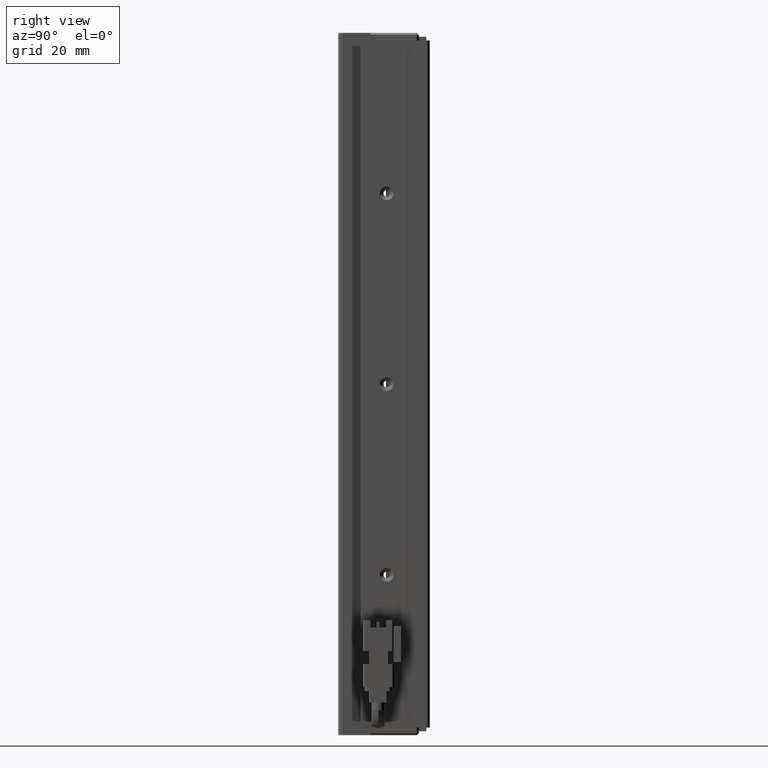
[diagram: clean part render]
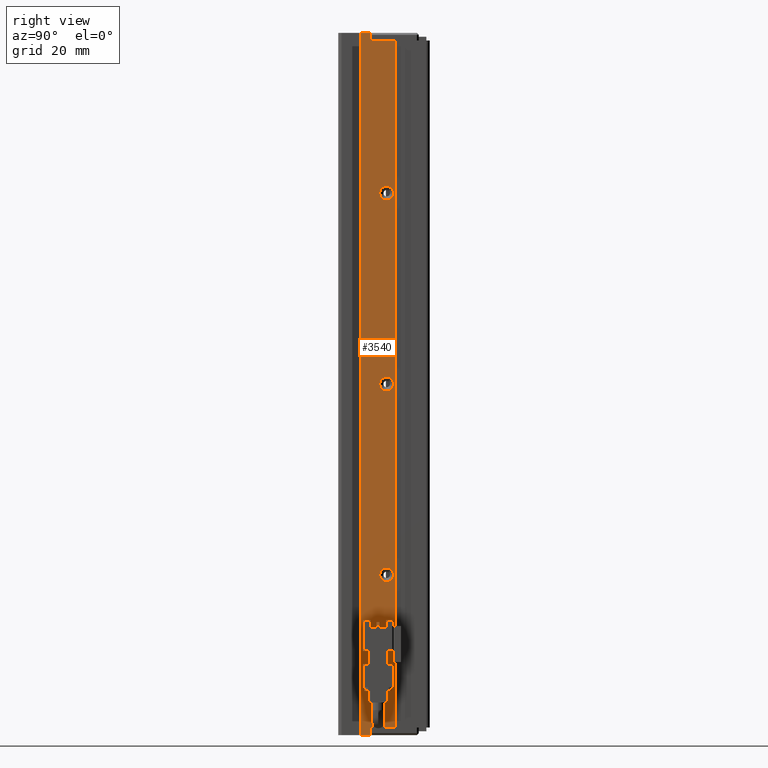
[diagram: same view with one face highlighted and labeled with its STEP entity id]
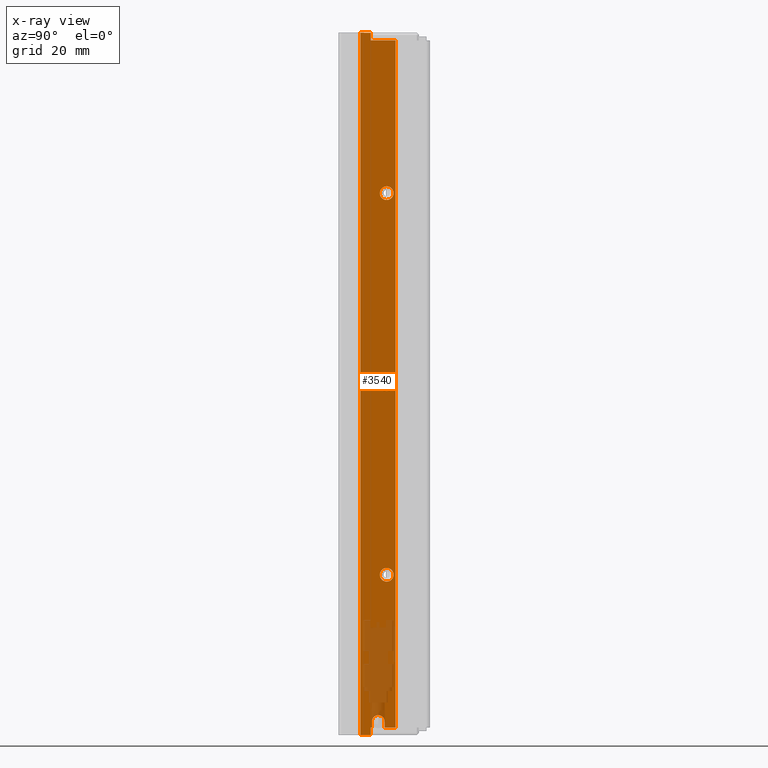
[diagram: x-ray of the same camera — body ghosted, the highlighted face saturated]
A machine part, right view. The second image highlights one B-rep face of the part: STEP entity #3540.
The next image is the same camera in x-ray: the body ghosted, the highlighted face saturated — about 10% of this face is hidden behind the body in this view.
In plain terms, the highlighted planar face has unit normal (-1, 0, 0).
Its self-contained STEP definition (entity closure, byte-faithful):
#128 = ORIENTED_EDGE ( 'NONE', *, *, #40824, .F. ) ;
#134 = PLANE ( 'NONE',  #14383 ) ;
#233 = CIRCLE ( 'NONE', #39451, 1.800000000014262400 ) ;
#405 = VECTOR ( 'NONE', #27981, 1000.000000000000000 ) ;
#547 = LINE ( 'NONE', #37311, #18160 ) ;
#699 = FACE_BOUND ( 'NONE', #46988, .T. ) ;
#729 = CARTESIAN_POINT ( 'NONE',  ( 51.42537974675766300, 23.69073232304837300, -115.0000000000000000 ) ) ;
#883 = ORIENTED_EDGE ( 'NONE', *, *, #30562, .F. ) ;
#1292 = AXIS2_PLACEMENT_3D ( 'NONE', #7423, #37057, #14677 ) ;
#1970 = LINE ( 'NONE', #13192, #14348 ) ;
#2014 = CARTESIAN_POINT ( 'NONE',  ( 51.42537974683541800, 16.79073232304837000, -207.0000000000000300 ) ) ;
#2220 = VERTEX_POINT ( 'NONE', #46627 ) ;
#2466 = VERTEX_POINT ( 'NONE', #19974 ) ;
#2497 = DIRECTION ( 'NONE',  ( 1.000000000000000000, 0.0000000000000000000, 0.0000000000000000000 ) ) ;
#3121 = EDGE_CURVE ( 'NONE', #23845, #40643, #1970, .T. ) ;
#3306 = CARTESIAN_POINT ( 'NONE',  ( 51.42537974683541800, 7.083797468354437600, -205.0000000000000300 ) ) ;
#3395 = AXIS2_PLACEMENT_3D ( 'NONE', #11533, #37202, #4110 ) ;
#3540 = ADVANCED_FACE ( 'NONE', ( #22979, #699, #11888, #37039 ), #134, .F. ) ;
#3723 = CIRCLE ( 'NONE', #3395, 1.649999999999998600 ) ;
#3783 = DIRECTION ( 'NONE',  ( 0.0000000000000000000, 0.0000000000000000000, -1.000000000000000000 ) ) ;
#3825 = ORIENTED_EDGE ( 'NONE', *, *, #34744, .F. ) ;
#4110 = DIRECTION ( 'NONE',  ( 0.0000000000000000000, 1.000000000000000000, 0.0000000000000000000 ) ) ;
#4149 = EDGE_CURVE ( 'NONE', #40376, #27003, #17003, .T. ) ;
#4599 = VECTOR ( 'NONE', #43146, 1000.000000000000000 ) ;
#4779 = CARTESIAN_POINT ( 'NONE',  ( 51.42537974683541800, 25.99073232304837300, -24.99999999999999300 ) ) ;
#5527 = CARTESIAN_POINT ( 'NONE',  ( 51.42537974675766300, 23.69073232304837300, -113.1999999999970900 ) ) ;
#5674 = EDGE_CURVE ( 'NONE', #2220, #44594, #37979, .T. ) ;
#6479 = DIRECTION ( 'NONE',  ( 1.000000000000000000, 0.0000000000000000000, 0.0000000000000000000 ) ) ;
#6808 = CARTESIAN_POINT ( 'NONE',  ( 51.42537974683541800, 19.49073232304837000, -207.0000000000000300 ) ) ;
#6910 = CARTESIAN_POINT ( 'NONE',  ( 51.42537974683541800, 19.49073232304837000, -23.00000000000000700 ) ) ;
#7007 = EDGE_LOOP ( 'NONE', ( #42544, #7105 ) ) ;
#7105 = ORIENTED_EDGE ( 'NONE', *, *, #16718, .F. ) ;
#7326 = VERTEX_POINT ( 'NONE', #13130 ) ;
#7423 = CARTESIAN_POINT ( 'NONE',  ( 51.42537974675766300, 23.69073232304837300, -115.0000000000000000 ) ) ;
#7566 = DIRECTION ( 'NONE',  ( 1.000000000000000000, 0.0000000000000000000, 0.0000000000000000000 ) ) ;
#7702 = LINE ( 'NONE', #36247, #36964 ) ;
#8639 = EDGE_CURVE ( 'NONE', #34086, #8791, #11707, .T. ) ;
#8735 = ORIENTED_EDGE ( 'NONE', *, *, #4149, .T. ) ;
#8742 = DIRECTION ( 'NONE',  ( 0.0000000000000000000, 1.000000000000000000, -0.0000000000000000000 ) ) ;
#8791 = VERTEX_POINT ( 'NONE', #27724 ) ;
#9421 = EDGE_CURVE ( 'NONE', #12729, #36385, #46027, .T. ) ;
#10944 = LINE ( 'NONE', #42381, #19682 ) ;
#10955 = ORIENTED_EDGE ( 'NONE', *, *, #20270, .F. ) ;
#11118 = LINE ( 'NONE', #32367, #32753 ) ;
#11533 = CARTESIAN_POINT ( 'NONE',  ( 51.42537974683541100, 21.49073232304837000, -203.4500000000000200 ) ) ;
#11707 = CIRCLE ( 'NONE', #37693, 1.800000000002910400 ) ;
#11789 = VERTEX_POINT ( 'NONE', #4779 ) ;
#11875 = EDGE_CURVE ( 'NONE', #40376, #11789, #10944, .T. ) ;
#11888 = FACE_OUTER_BOUND ( 'NONE', #30098, .T. ) ;
#12118 = DIRECTION ( 'NONE',  ( 0.0000000000000000000, 0.0000000000000000000, 1.000000000000000000 ) ) ;
#12729 = VERTEX_POINT ( 'NONE', #15035 ) ;
#13130 = CARTESIAN_POINT ( 'NONE',  ( 51.42537974683541100, 23.14073232304837200, -203.4500000000000200 ) ) ;
#13192 = CARTESIAN_POINT ( 'NONE',  ( 51.42537974683541800, 16.79073232304837000, -23.00000000000000700 ) ) ;
#13541 = VECTOR ( 'NONE', #25392, 1000.000000000000000 ) ;
#13593 = VERTEX_POINT ( 'NONE', #41808 ) ;
#13748 = ORIENTED_EDGE ( 'NONE', *, *, #15806, .T. ) ;
#13990 = DIRECTION ( 'NONE',  ( -0.0000000000000000000, 0.0000000000000000000, 1.000000000000000000 ) ) ;
#14348 = VECTOR ( 'NONE', #47004, 1000.000000000000000 ) ;
#14383 = AXIS2_PLACEMENT_3D ( 'NONE', #45404, #22901, #12118 ) ;
#14677 = DIRECTION ( 'NONE',  ( 0.0000000000000000000, 0.0000000000000000000, -1.000000000000000000 ) ) ;
#15035 = CARTESIAN_POINT ( 'NONE',  ( 51.42537974683541800, 19.84073232304836800, -205.0000000000000300 ) ) ;
#15206 = CARTESIAN_POINT ( 'NONE',  ( 51.42537974683541800, 19.49073232304837000, -22.99999999999999300 ) ) ;
#15513 = DIRECTION ( 'NONE',  ( 1.000000000000000000, 0.0000000000000000000, 0.0000000000000000000 ) ) ;
#15721 = EDGE_CURVE ( 'NONE', #11789, #2220, #7702, .T. ) ;
#15806 = EDGE_CURVE ( 'NONE', #7326, #44594, #34634, .T. ) ;
#16437 = CARTESIAN_POINT ( 'NONE',  ( 51.42537974687135000, 23.69073232304837300, -63.20000000000845800 ) ) ;
#16540 = AXIS2_PLACEMENT_3D ( 'NONE', #18699, #7566, #3783 ) ;
#16718 = EDGE_CURVE ( 'NONE', #39408, #25178, #18592, .T. ) ;
#16821 = CARTESIAN_POINT ( 'NONE',  ( 51.42537974687135000, 23.69073232304837300, -65.00000000000000000 ) ) ;
#17003 = LINE ( 'NONE', #21652, #34578 ) ;
#18095 = CARTESIAN_POINT ( 'NONE',  ( 51.42537974683541800, 19.84073232304837100, -203.4500000000000200 ) ) ;
#18160 = VECTOR ( 'NONE', #30127, 1000.000000000000000 ) ;
#18592 = CIRCLE ( 'NONE', #33696, 1.799999999991544400 ) ;
#18612 = LINE ( 'NONE', #35895, #405 ) ;
#18699 = CARTESIAN_POINT ( 'NONE',  ( 51.42537974687135000, 23.69073232304837300, -65.00000000000000000 ) ) ;
#18799 = EDGE_CURVE ( 'NONE', #25178, #39408, #28622, .T. ) ;
#18989 = EDGE_CURVE ( 'NONE', #40643, #27003, #18612, .T. ) ;
#19164 = ORIENTED_EDGE ( 'NONE', *, *, #42244, .T. ) ;
#19682 = VECTOR ( 'NONE', #8742, 1000.000000000000000 ) ;
#19974 = CARTESIAN_POINT ( 'NONE',  ( 51.42537974687135000, 23.69073232304837300, -166.8000000000142800 ) ) ;
#20080 = EDGE_CURVE ( 'NONE', #13593, #2466, #233, .T. ) ;
#20270 = EDGE_CURVE ( 'NONE', #7326, #36385, #3723, .T. ) ;
#20600 = DIRECTION ( 'NONE',  ( 0.0000000000000000000, 0.0000000000000000000, -1.000000000000000000 ) ) ;
#21015 = ORIENTED_EDGE ( 'NONE', *, *, #3121, .F. ) ;
#21652 = CARTESIAN_POINT ( 'NONE',  ( 51.42537974683541800, 19.49073232304837000, -23.00000000000000700 ) ) ;
#22195 = ORIENTED_EDGE ( 'NONE', *, *, #9421, .T. ) ;
#22901 = DIRECTION ( 'NONE',  ( -1.000000000000000000, 0.0000000000000000000, 0.0000000000000000000 ) ) ;
#22979 = FACE_BOUND ( 'NONE', #26294, .T. ) ;
#23016 = DIRECTION ( 'NONE',  ( 0.0000000000000000000, 0.0000000000000000000, -1.000000000000000000 ) ) ;
#23845 = VERTEX_POINT ( 'NONE', #2014 ) ;
#24420 = CARTESIAN_POINT ( 'NONE',  ( 51.42537974683541100, 23.14073232304837200, -205.0000000000000300 ) ) ;
#24562 = ORIENTED_EDGE ( 'NONE', *, *, #5674, .F. ) ;
#25178 = VERTEX_POINT ( 'NONE', #41942 ) ;
#25225 = DIRECTION ( 'NONE',  ( -0.0000000000000000000, 1.119176436114072200E-015, 1.000000000000000000 ) ) ;
#25345 = AXIS2_PLACEMENT_3D ( 'NONE', #39990, #6479, #29553 ) ;
#25392 = DIRECTION ( 'NONE',  ( -0.0000000000000000000, 2.238352872228144400E-015, -1.000000000000000000 ) ) ;
#26225 = ORIENTED_EDGE ( 'NONE', *, *, #11875, .F. ) ;
#26294 = EDGE_LOOP ( 'NONE', ( #3825, #40881 ) ) ;
#26736 = CARTESIAN_POINT ( 'NONE',  ( 51.42537974683541800, 19.49073232304837000, -24.99999999999999300 ) ) ;
#27003 = VERTEX_POINT ( 'NONE', #15206 ) ;
#27724 = CARTESIAN_POINT ( 'NONE',  ( 51.42537974675766300, 23.69073232304837300, -116.8000000000029100 ) ) ;
#27752 = DIRECTION ( 'NONE',  ( 1.000000000000000000, 0.0000000000000000000, 0.0000000000000000000 ) ) ;
#27981 = DIRECTION ( 'NONE',  ( 0.0000000000000000000, 1.000000000000000000, -0.0000000000000000000 ) ) ;
#28622 = CIRCLE ( 'NONE', #16540, 1.799999999991544400 ) ;
#28714 = DIRECTION ( 'NONE',  ( 0.0000000000000000000, 0.0000000000000000000, -1.000000000000000000 ) ) ;
#28827 = ORIENTED_EDGE ( 'NONE', *, *, #18989, .F. ) ;
#28994 = DIRECTION ( 'NONE',  ( -0.0000000000000000000, 0.0000000000000000000, 1.000000000000000000 ) ) ;
#29016 = CARTESIAN_POINT ( 'NONE',  ( 51.42537974683541800, 19.84073232304836800, -205.0000000000000300 ) ) ;
#29043 = CARTESIAN_POINT ( 'NONE',  ( 51.42537974683541100, 23.14073232304837200, -205.0000000000000300 ) ) ;
#29212 = CARTESIAN_POINT ( 'NONE',  ( 51.42537974683541800, 16.79073232304837000, -22.99999999999999300 ) ) ;
#29300 = ORIENTED_EDGE ( 'NONE', *, *, #8639, .F. ) ;
#29553 = DIRECTION ( 'NONE',  ( 0.0000000000000000000, 0.0000000000000000000, -1.000000000000000000 ) ) ;
#29580 = ORIENTED_EDGE ( 'NONE', *, *, #46742, .F. ) ;
#30098 = EDGE_LOOP ( 'NONE', ( #22195, #10955, #13748, #24562, #39342, #26225, #8735, #28827, #21015, #883, #19164, #29580 ) ) ;
#30127 = DIRECTION ( 'NONE',  ( -0.0000000000000000000, -1.000000000000000000, 0.0000000000000000000 ) ) ;
#30562 = EDGE_CURVE ( 'NONE', #41711, #23845, #547, .T. ) ;
#31557 = LINE ( 'NONE', #6910, #38487 ) ;
#32367 = CARTESIAN_POINT ( 'NONE',  ( 51.42537974683541800, 7.083797468354437600, -205.0000000000000300 ) ) ;
#32753 = VECTOR ( 'NONE', #36148, 1000.000000000000000 ) ;
#33696 = AXIS2_PLACEMENT_3D ( 'NONE', #16821, #27752, #20600 ) ;
#34086 = VERTEX_POINT ( 'NONE', #5527 ) ;
#34578 = VECTOR ( 'NONE', #28994, 1000.000000000000000 ) ;
#34634 = LINE ( 'NONE', #24420, #13541 ) ;
#34744 = EDGE_CURVE ( 'NONE', #2466, #13593, #47179, .T. ) ;
#35895 = CARTESIAN_POINT ( 'NONE',  ( 51.42537974683541800, 7.083797468354437600, -23.00000000000000700 ) ) ;
#36148 = DIRECTION ( 'NONE',  ( -0.0000000000000000000, -1.000000000000000000, 0.0000000000000000000 ) ) ;
#36247 = CARTESIAN_POINT ( 'NONE',  ( 51.42537974683541800, 25.99073232304837300, -23.00000000000000700 ) ) ;
#36385 = VERTEX_POINT ( 'NONE', #18095 ) ;
#36964 = VECTOR ( 'NONE', #40580, 1000.000000000000000 ) ;
#37039 = FACE_BOUND ( 'NONE', #7007, .T. ) ;
#37057 = DIRECTION ( 'NONE',  ( 1.000000000000000000, 0.0000000000000000000, 0.0000000000000000000 ) ) ;
#37202 = DIRECTION ( 'NONE',  ( 1.000000000000000000, 5.687617954022316600E-016, -0.0000000000000000000 ) ) ;
#37311 = CARTESIAN_POINT ( 'NONE',  ( 51.42537974683541800, 7.083797468354437600, -207.0000000000000300 ) ) ;
#37693 = AXIS2_PLACEMENT_3D ( 'NONE', #729, #15513, #23016 ) ;
#37979 = LINE ( 'NONE', #3306, #4599 ) ;
#38487 = VECTOR ( 'NONE', #13990, 1000.000000000000000 ) ;
#39342 = ORIENTED_EDGE ( 'NONE', *, *, #15721, .F. ) ;
#39408 = VERTEX_POINT ( 'NONE', #16437 ) ;
#39424 = CARTESIAN_POINT ( 'NONE',  ( 51.42537974683541800, 19.49073232304837000, -205.0000000000000300 ) ) ;
#39451 = AXIS2_PLACEMENT_3D ( 'NONE', #39793, #2497, #28714 ) ;
#39789 = CIRCLE ( 'NONE', #1292, 1.800000000002910400 ) ;
#39793 = CARTESIAN_POINT ( 'NONE',  ( 51.42537974687135000, 23.69073232304837300, -165.0000000000000000 ) ) ;
#39990 = CARTESIAN_POINT ( 'NONE',  ( 51.42537974687135000, 23.69073232304837300, -165.0000000000000000 ) ) ;
#40376 = VERTEX_POINT ( 'NONE', #26736 ) ;
#40580 = DIRECTION ( 'NONE',  ( -0.0000000000000000000, -0.0000000000000000000, -1.000000000000000000 ) ) ;
#40643 = VERTEX_POINT ( 'NONE', #29212 ) ;
#40824 = EDGE_CURVE ( 'NONE', #8791, #34086, #39789, .T. ) ;
#40881 = ORIENTED_EDGE ( 'NONE', *, *, #20080, .F. ) ;
#41333 = VECTOR ( 'NONE', #25225, 1000.000000000000000 ) ;
#41711 = VERTEX_POINT ( 'NONE', #6808 ) ;
#41808 = CARTESIAN_POINT ( 'NONE',  ( 51.42537974687135000, 23.69073232304837300, -163.1999999999857500 ) ) ;
#41942 = CARTESIAN_POINT ( 'NONE',  ( 51.42537974687135000, 23.69073232304837300, -66.79999999999154200 ) ) ;
#42244 = EDGE_CURVE ( 'NONE', #41711, #44916, #31557, .T. ) ;
#42381 = CARTESIAN_POINT ( 'NONE',  ( 51.42537974683541800, 7.083797468354437600, -25.00000000000000700 ) ) ;
#42544 = ORIENTED_EDGE ( 'NONE', *, *, #18799, .F. ) ;
#43146 = DIRECTION ( 'NONE',  ( -0.0000000000000000000, -1.000000000000000000, 0.0000000000000000000 ) ) ;
#44594 = VERTEX_POINT ( 'NONE', #29043 ) ;
#44916 = VERTEX_POINT ( 'NONE', #39424 ) ;
#45404 = CARTESIAN_POINT ( 'NONE',  ( 51.42537974683541800, 7.083797468354437600, -23.00000000000000700 ) ) ;
#46027 = LINE ( 'NONE', #29016, #41333 ) ;
#46627 = CARTESIAN_POINT ( 'NONE',  ( 51.42537974683541800, 25.99073232304837300, -205.0000000000000300 ) ) ;
#46742 = EDGE_CURVE ( 'NONE', #12729, #44916, #11118, .T. ) ;
#46988 = EDGE_LOOP ( 'NONE', ( #128, #29300 ) ) ;
#47004 = DIRECTION ( 'NONE',  ( 0.0000000000000000000, 0.0000000000000000000, 1.000000000000000000 ) ) ;
#47179 = CIRCLE ( 'NONE', #25345, 1.800000000014262400 ) ;